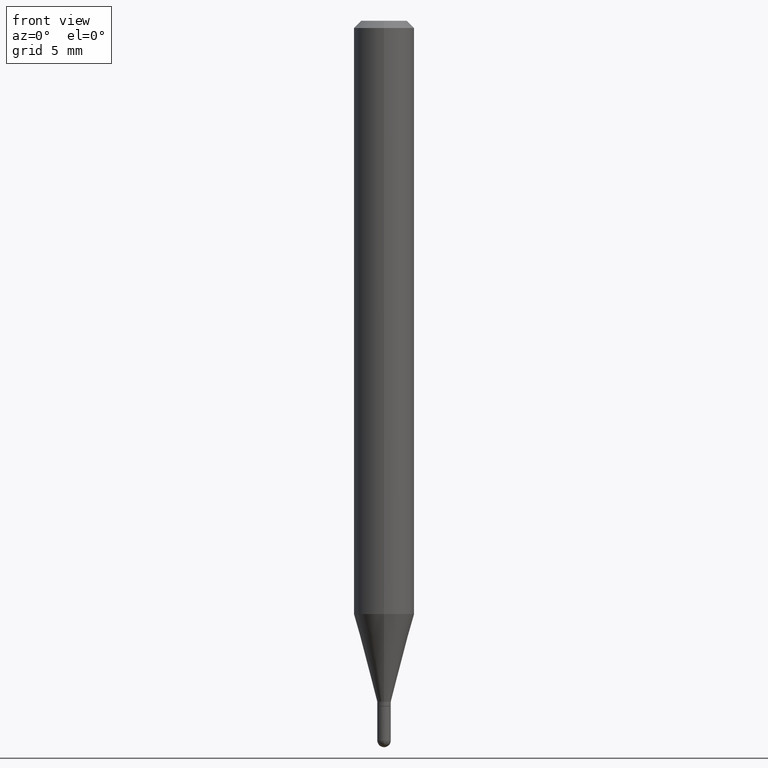
[diagram: clean part render]
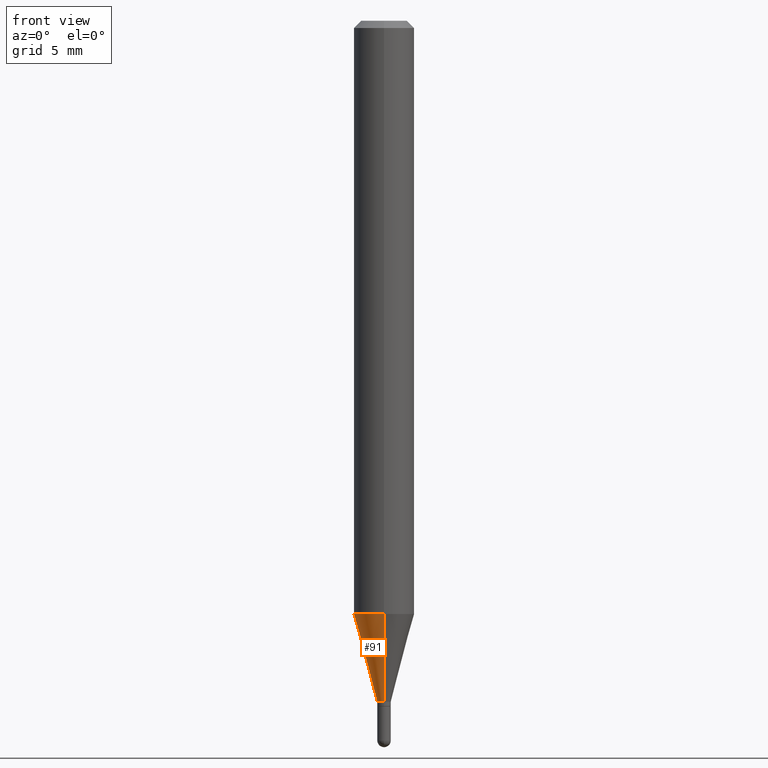
[diagram: same view with one face highlighted and labeled with its STEP entity id]
A machine part, front view. The second image highlights one B-rep face of the part: STEP entity #91.
In plain terms, the highlighted conical surface has half-angle 15 deg.
Its self-contained STEP definition (entity closure, byte-faithful):
#2 = CONICAL_SURFACE ( 'NONE', #132, 0.01399999999999992396, 0.2617993877991504625 ) ;
#20 = ORIENTED_EDGE ( 'NONE', *, *, #436, .F. ) ;
#34 = CARTESIAN_POINT ( 'NONE',  ( 3.438308926590751733E-29, -4.909051711308774725E-15, -1.406000000000000139 ) ) ;
#37 = VECTOR ( 'NONE', #507, 39.37007874015748854 ) ;
#54 = DIRECTION ( 'NONE',  ( -2.445454428585171243E-29, 3.491501928384618052E-15, 1.000000000000000000 ) ) ;
#57 = EDGE_CURVE ( 'NONE', #195, #335, #233, .T. ) ;
#74 = AXIS2_PLACEMENT_3D ( 'NONE', #34, #378, #504 ) ;
#91 = ADVANCED_FACE ( 'NONE', ( #488 ), #2, .T. ) ;
#93 = CARTESIAN_POINT ( 'NONE',  ( 2.717825964282703634E-16, 0.01399999999999501643, -1.406000000000000139 ) ) ;
#100 = DIRECTION ( 'NONE',  ( -2.445454428585171243E-29, 3.491501928384618052E-15, 1.000000000000000000 ) ) ;
#129 = CARTESIAN_POINT ( 'NONE',  ( 9.947598300644785050E-17, 0.01399999999999501643, -1.406000000000000139 ) ) ;
#132 = AXIS2_PLACEMENT_3D ( 'NONE', #141, #100, #251 ) ;
#141 = CARTESIAN_POINT ( 'NONE',  ( 3.438308926590751733E-29, -4.909051711308774725E-15, -1.406000000000000139 ) ) ;
#149 = VERTEX_POINT ( 'NONE', #370 ) ;
#155 = EDGE_CURVE ( 'NONE', #149, #335, #267, .T. ) ;
#162 = VERTEX_POINT ( 'NONE', #93 ) ;
#177 = DIRECTION ( 'NONE',  ( -6.982962677686265922E-15, -1.000000000000000000, 4.370956789862821150E-15 ) ) ;
#184 = CARTESIAN_POINT ( 'NONE',  ( 2.995670758099655086E-29, -4.277074275623154281E-15, -1.224995535832910099 ) ) ;
#191 = CIRCLE ( 'NONE', #74, 0.01399999999999992396 ) ;
#195 = VERTEX_POINT ( 'NONE', #374 ) ;
#228 = ORIENTED_EDGE ( 'NONE', *, *, #316, .T. ) ;
#233 = LINE ( 'NONE', #385, #37 ) ;
#239 = VECTOR ( 'NONE', #349, 39.37007874015748854 ) ;
#251 = DIRECTION ( 'NONE',  ( -6.982962677686265133E-15, -1.000000000000000000, 0.000000000000000000 ) ) ;
#267 = CIRCLE ( 'NONE', #437, 0.06250000000000000000 ) ;
#316 = EDGE_CURVE ( 'NONE', #162, #195, #191, .T. ) ;
#334 = LINE ( 'NONE', #129, #239 ) ;
#335 = VERTEX_POINT ( 'NONE', #416 ) ;
#349 = DIRECTION ( 'NONE',  ( 1.839019923739601499E-15, 0.2588190451025251249, 0.9659258262890670910 ) ) ;
#370 = CARTESIAN_POINT ( 'NONE',  ( 4.440892098500924943E-16, 0.06249999999999571176, -1.224995535832910321 ) ) ;
#373 = ORIENTED_EDGE ( 'NONE', *, *, #155, .F. ) ;
#374 = CARTESIAN_POINT ( 'NONE',  ( -9.776147748757280565E-17, -0.01400000000000483323, -1.406000000000000139 ) ) ;
#378 = DIRECTION ( 'NONE',  ( -2.445454428585171243E-29, 3.491501928384618052E-15, 1.000000000000000000 ) ) ;
#385 = CARTESIAN_POINT ( 'NONE',  ( -9.776147748757280565E-17, -0.01400000000000483323, -1.406000000000000139 ) ) ;
#387 = ORIENTED_EDGE ( 'NONE', *, *, #57, .T. ) ;
#398 = EDGE_LOOP ( 'NONE', ( #20, #228, #387, #373 ) ) ;
#416 = CARTESIAN_POINT ( 'NONE',  ( -4.364351673553617913E-16, -0.06250000000000428824, -1.224995535832910099 ) ) ;
#436 = EDGE_CURVE ( 'NONE', #162, #149, #334, .T. ) ;
#437 = AXIS2_PLACEMENT_3D ( 'NONE', #184, #54, #177 ) ;
#488 = FACE_OUTER_BOUND ( 'NONE', #398, .T. ) ;
#504 = DIRECTION ( 'NONE',  ( -6.982962677686265133E-15, -1.000000000000000000, 0.000000000000000000 ) ) ;
#507 = DIRECTION ( 'NONE',  ( -1.807323732225331323E-15, -0.2588190451025183525, 0.9659258262890689783 ) ) ;